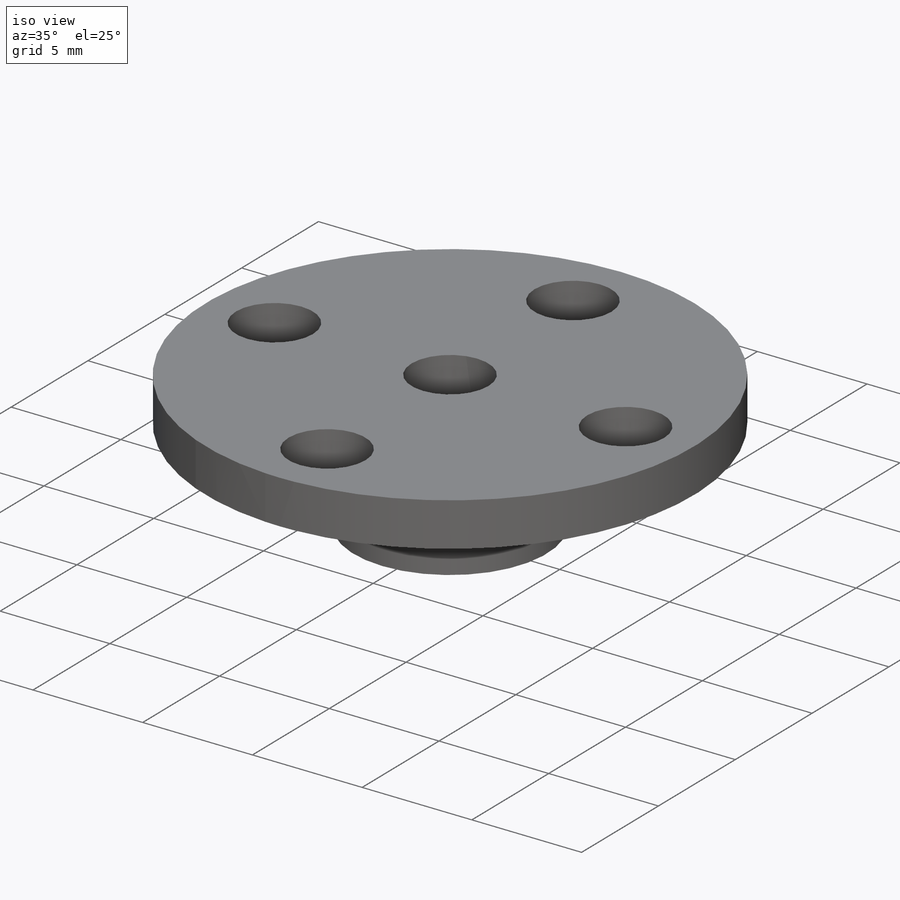
[diagram: iso view]
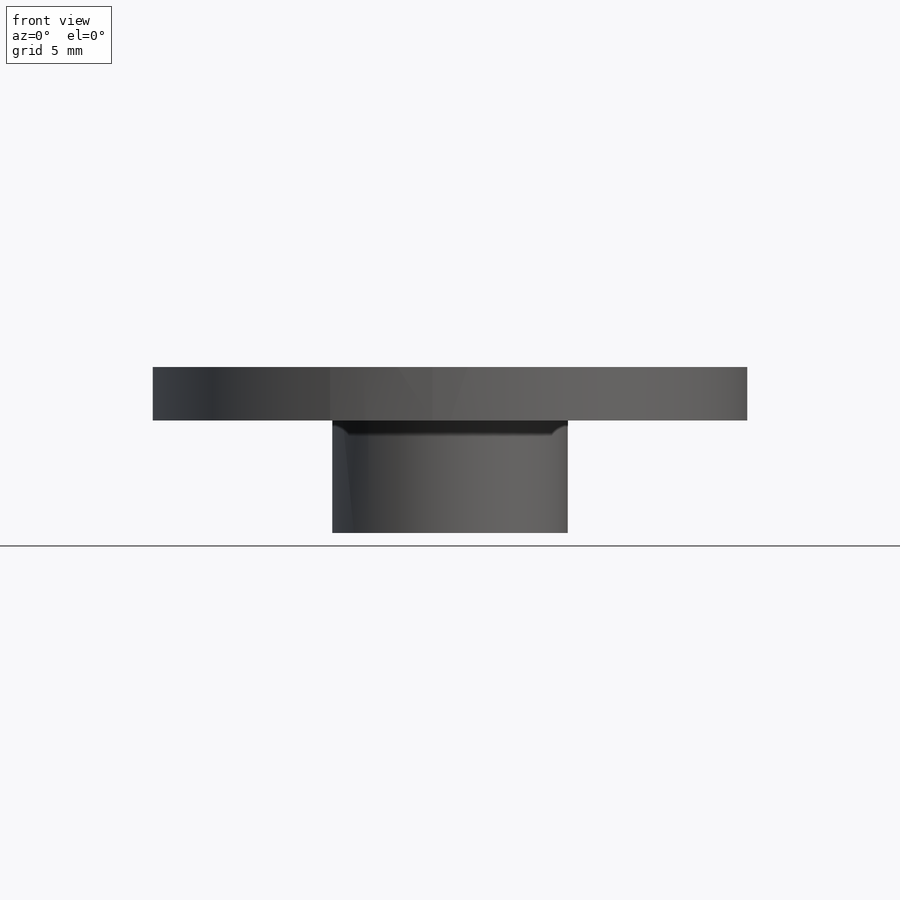
[diagram: front view]
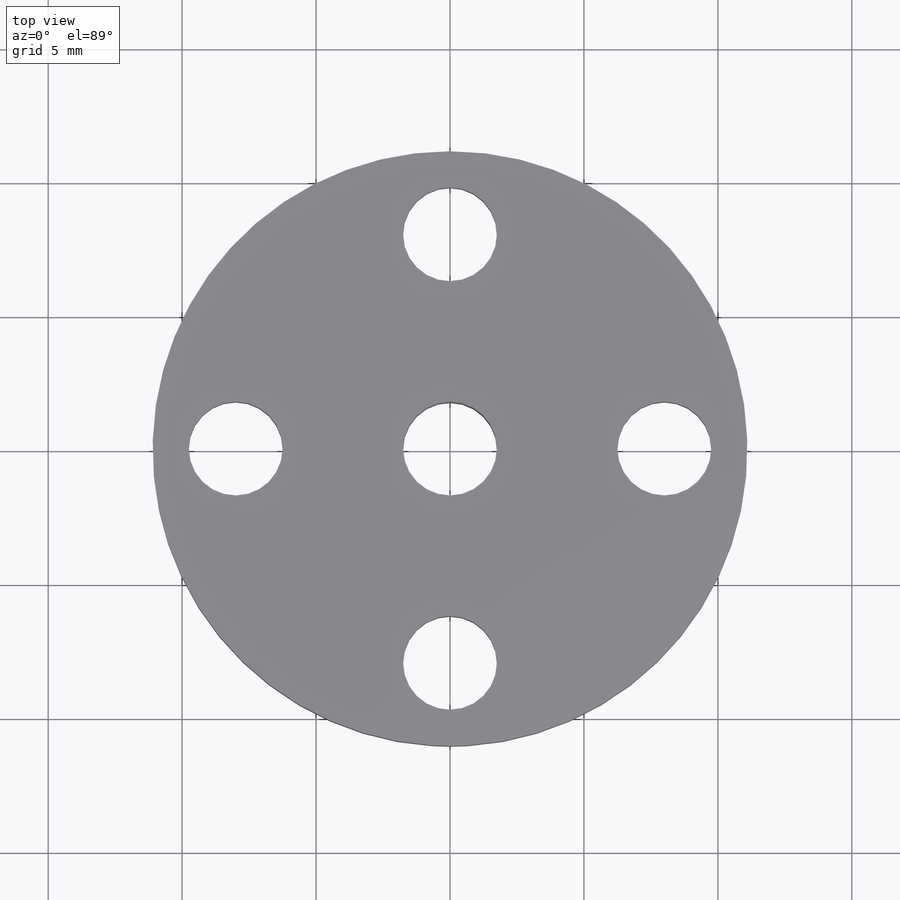
[diagram: top view]
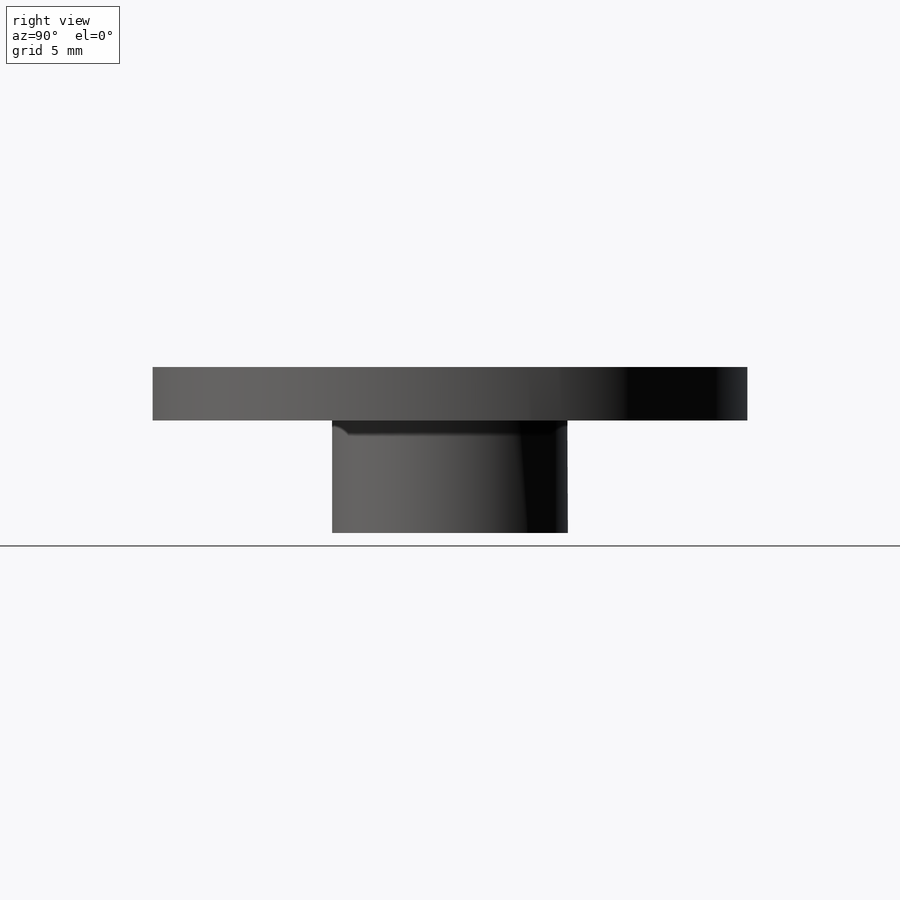
[diagram: right view]
SOLIDWORKS PART (.sldprt)
format: sldprt  version: not decoded by parser v0  size: 187,904 bytes
history: native  units: mm
features: sketch x5, cut_extrude x3, extrude x2, material x1 (+17 scaffold rows collapsed)
feature tree (28):
  scaffold x17  (default folders/planes/origin — collapsed)
  material  "6061 Alloy"
  sketch  "Sketch1"  dims[D1=22.2mm]
  extrude  "Extrude1"  Depth=2mm
  sketch  "Sketch2"  dims[D1=3.5mm D2=3.5mm D3=3.5mm D4=3.5mm D5=8.0mm D6=8.0mm D7=8.0mm D8=8.0mm]
  cut_extrude  "Cut-Extrude1"  [1 undecoded]
  sketch  "Sketch3"  dims[D1=8.8mm]
  extrude  "Extrude2"  Depth=4.2mm
  sketch  "Sketch4"  dims[D1=5.7mm]
  cut_extrude  "Cut-Extrude2"  Depth=3mm
  sketch  "Sketch5"  dims[D1=3.5mm]
  cut_extrude  "Cut-Extrude3"  [1 undecoded]
decode coverage: 8 of 10 modeling features carry decoded parameters
note: 2 parameter values undecoded
note: suppression state not decoded; provenance and decode notes live in map.json
